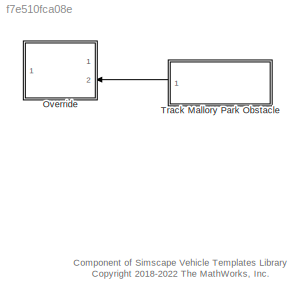
MODEL slx_f7e510fca08e
KIND library
CONFIG AbsTol = auto
CONFIG EnableMultiTasking = off
CONFIG FixedStep = auto
CONFIG MaxStep = auto
CONFIG MinStep = auto
CONFIG RelTol = 1e-3
CONFIG SampleTimeConstraint = Unconstrained
CONFIG SolverName = VariableStepAuto
CONFIG StartTime = 0.0
CONFIG StopTime = 10.0
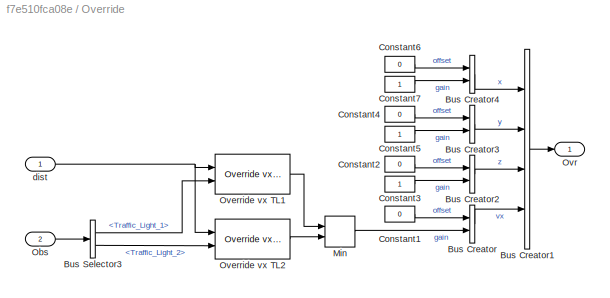
BLOCK [SubSystem] Override
  Ports = [2, 1]
  RequestExecContextInheritance = off
BLOCK [BusCreator] Override/Bus Creator
  DisplayOption = bar
  InheritFromInputs = on
  Inputs = 2
  Ports = [2, 1]
BLOCK [BusCreator] Override/Bus Creator1
  DisplayOption = bar
  InheritFromInputs = on
  Inputs = 4
  Ports = [4, 1]
BLOCK [BusCreator] Override/Bus Creator2
  DisplayOption = bar
  InheritFromInputs = on
  Inputs = 2
  Ports = [2, 1]
BLOCK [BusCreator] Override/Bus Creator3
  DisplayOption = bar
  InheritFromInputs = on
  Inputs = 2
  Ports = [2, 1]
BLOCK [BusCreator] Override/Bus Creator4
  DisplayOption = bar
  InheritFromInputs = on
  Inputs = 2
  Ports = [2, 1]
BLOCK [BusSelector] Override/Bus Selector3
  OutputSignals = Traffic_Light_1,Traffic_Light_2
  Ports = [1, 2]
BLOCK [Constant] Override/Constant1
  Value = 0
BLOCK [Constant] Override/Constant2
  Value = 0
BLOCK [Constant] Override/Constant3
BLOCK [Constant] Override/Constant4
  Value = 0
BLOCK [Constant] Override/Constant5
BLOCK [Constant] Override/Constant6
  Value = 0
BLOCK [Constant] Override/Constant7
BLOCK [MinMax] Override/Min
  Inputs = 2
  Ports = [2, 1]
  ZeroCross = off
BLOCK [Inport] Override/Obs
  Port = 2
BLOCK [Reference] Override/Override vx TL1  REF=sm_car_object_traffic_light/Override vx  (lib defined in slx_246d8c1ef1d0)
Traffic Light Stop
  Ports = [2, 1]
  SourceBlock = sm_car_object_traffic_light/Override vx\nTraffic Light Stop
  SourceType = Override vx Traffic Light Stop
BLOCK [Reference] Override/Override vx TL2  REF=sm_car_object_traffic_light/Override vx  (lib defined in slx_246d8c1ef1d0)
Traffic Light Stop
  Ports = [2, 1]
  SourceBlock = sm_car_object_traffic_light/Override vx\nTraffic Light Stop
  SourceType = Override vx Traffic Light Stop
BLOCK [Outport] Override/Ovr
  VectorParamsAs1DForOutWhenUnconnected = off
BLOCK [Inport] Override/dist
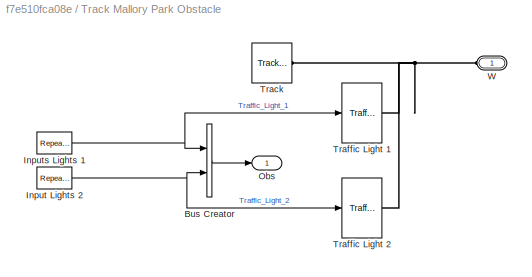
BLOCK [SubSystem] Track Mallory Park Obstacle
  Ports = [0, 1, 0, 0, 0, 1]
  RequestExecContextInheritance = off
BLOCK [BusCreator] Track Mallory Park Obstacle/Bus Creator
  DisplayOption = bar
  InheritFromInputs = on
  Inputs = 2
  Ports = [2, 1]
BLOCK [Reference] Track Mallory Park Obstacle/Input Lights 2  REF=simulink/Sources/Repeating
Sequence
  Ports = [0, 1]
  SourceBlock = simulink/Sources/Repeating\nSequence
  SourceProductBaseCode = SL
  SourceType = Repeating table
BLOCK [Reference] Track Mallory Park Obstacle/Inputs Lights 1  REF=simulink/Sources/Repeating
Sequence
  NameLocation = top
  Ports = [0, 1]
  SourceBlock = simulink/Sources/Repeating\nSequence
  SourceProductBaseCode = SL
  SourceType = Repeating table
BLOCK [Outport] Track Mallory Park Obstacle/Obs
  VectorParamsAs1DForOutWhenUnconnected = off
BLOCK [Reference] Track Mallory Park Obstacle/Track  REF=sm_car_lib/Environment/Track Extrusion  (lib defined in slx_05426f0848b6, slx_5dc2867fb1c9)
  Ports = [0, 0, 0, 0, 0, 0, 1]
  SourceBlock = sm_car_lib/Environment/Track Extrusion
BLOCK [Reference] Track Mallory Park Obstacle/Traffic Light 1  REF=sm_car_object_traffic_light/Traffic Light Pole  (lib defined in slx_246d8c1ef1d0)
  Ports = [1, 0, 0, 0, 0, 0, 1]
  SourceBlock = sm_car_object_traffic_light/Traffic Light Pole
BLOCK [Reference] Track Mallory Park Obstacle/Traffic Light 2  REF=sm_car_object_traffic_light/Traffic Light Pole  (lib defined in slx_246d8c1ef1d0)
  Ports = [1, 0, 0, 0, 0, 0, 1]
  SourceBlock = sm_car_object_traffic_light/Traffic Light Pole
BLOCK [PMIOPort] Track Mallory Park Obstacle/W
  Side = Left
ANNOTATION (root): Component of Simscape Vehicle Templates Library <copyright redacted>
LINE Override/Bus Creator1:1 -> Override/Ovr:1
LINE Override/Bus Creator2:1 -> Override/Bus Creator1:3
LINE Override/Bus Creator3:1 -> Override/Bus Creator1:2
LINE Override/Bus Creator4:1 -> Override/Bus Creator1:1
LINE Override/Bus Creator:1 -> Override/Bus Creator1:4
LINE Override/Bus Selector3:1 -> Override/Override vx TL1:2
LINE Override/Bus Selector3:2 -> Override/Override vx TL2:2
LINE Override/Constant1:1 -> Override/Bus Creator:1
LINE Override/Constant2:1 -> Override/Bus Creator2:1
LINE Override/Constant3:1 -> Override/Bus Creator2:2
LINE Override/Constant4:1 -> Override/Bus Creator3:1
LINE Override/Constant5:1 -> Override/Bus Creator3:2
LINE Override/Constant6:1 -> Override/Bus Creator4:1
LINE Override/Constant7:1 -> Override/Bus Creator4:2
LINE Override/Min:1 -> Override/Bus Creator:2
LINE Override/Obs:1 -> Override/Bus Selector3:1
LINE Override/Override vx TL1:1 -> Override/Min:1
LINE Override/Override vx TL2:1 -> Override/Min:2
NET Override/dist:1 -> Override/Override vx TL1:1, Override/Override vx TL2:1
LINE Track Mallory Park Obstacle/Bus Creator:1 -> Track Mallory Park Obstacle/Obs:1
NET Track Mallory Park Obstacle/Input Lights 2:1 -> Track Mallory Park Obstacle/Bus Creator:2, Track Mallory Park Obstacle/Traffic Light 2:1
NET Track Mallory Park Obstacle/Inputs Lights 1:1 -> Track Mallory Park Obstacle/Bus Creator:1, Track Mallory Park Obstacle/Traffic Light 1:1
LINE Track Mallory Park Obstacle:1 -> Override:2
PNET net1: Track Mallory Park Obstacle/Track:RConn1 -- Track Mallory Park Obstacle/Traffic Light 1:RConn1 -- Track Mallory Park Obstacle/Traffic Light 2:RConn1 -- Track Mallory Park Obstacle/W:RConn1
note: NET lines group one-source signal fan-out (src -> all destinations, sorted); 1:1 wires keep LINE; PNET lines group multi-terminal physical nets as a canonical sorted terminal list (undirected conserving connections); 2-terminal nets keep the pairwise PLINE form
